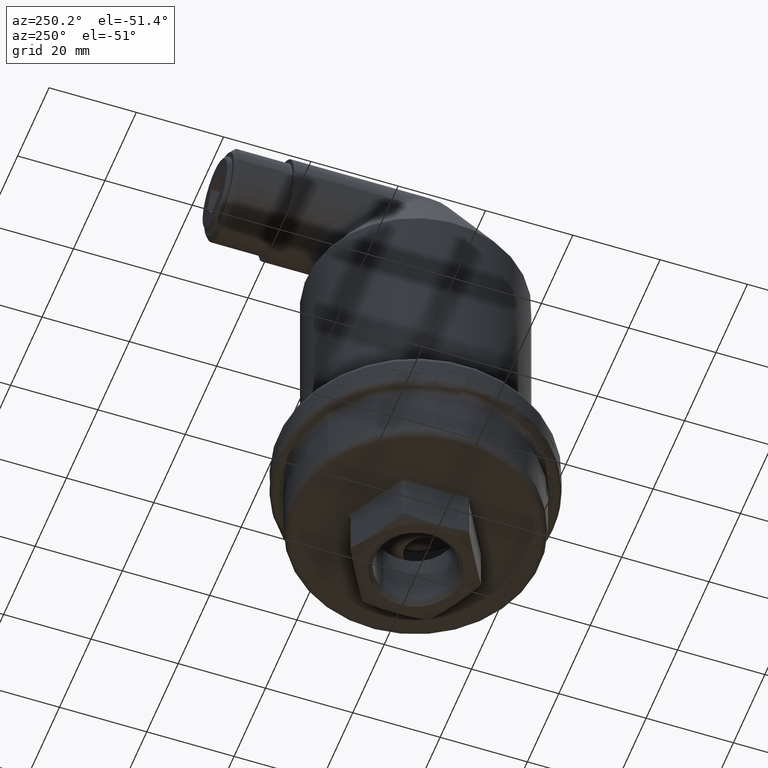
[diagram: clean part render]
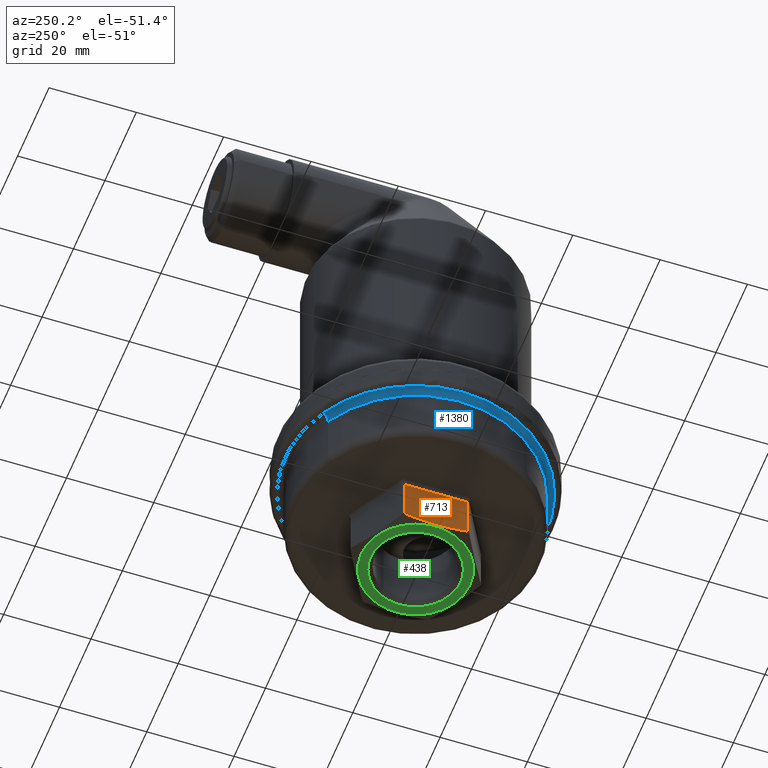
[diagram: same view with three faces highlighted in distinct colors, each labeled with its STEP entity id]
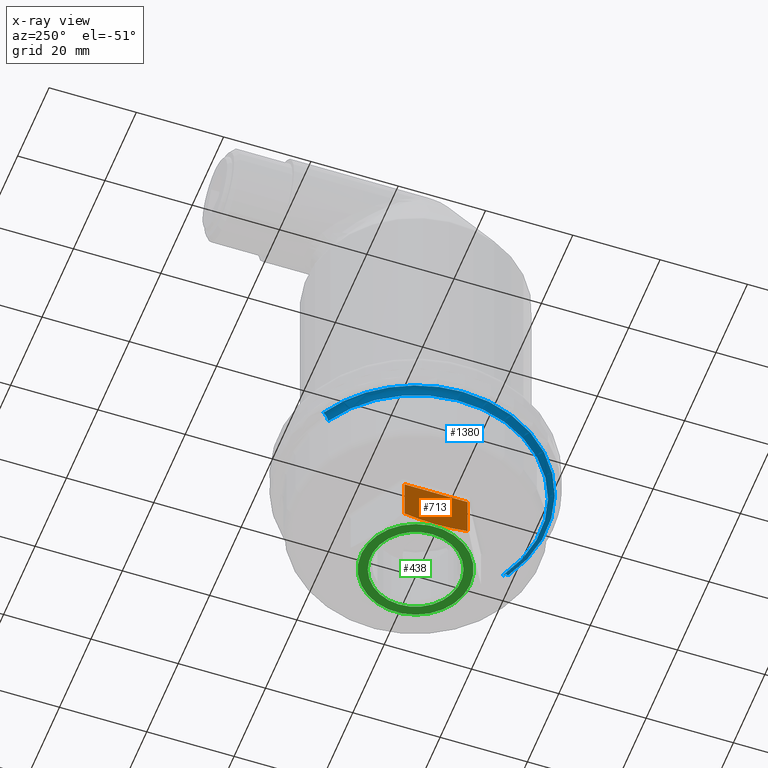
[diagram: x-ray of the same camera — body ghosted, the three highlighted faces saturated]
A machine part, auxiliary view with three faces highlighted in distinct colors.
The next image is the same camera in x-ray (body ghosted, the three faces saturated) — at least one of them is partly hidden behind the body in this view.
Their STEP definitions:

[orange] entity #713 — the highlighted planar face has unit normal (-1, 0, 0).
#693=AXIS2_PLACEMENT_3D('Plane Axis2P3D',#690,#691,#692) ;
#462=CARTESIAN_POINT('Vertex',(-13.,-7.21687836487,0.943105687661)) ;
#466=CARTESIAN_POINT('Control Point',(-12.9999999837,7.21687826143,0.943105689215)) ;
#467=CARTESIAN_POINT('Control Point',(-12.9999994968,4.26568433664,0.370139166259)) ;
#468=CARTESIAN_POINT('Control Point',(-12.9999998519,1.36240414415,0.0332094317862)) ;
#469=CARTESIAN_POINT('Control Point',(-13.0000010053,-1.36231972856,0.0332149949592)) ;
#470=CARTESIAN_POINT('Control Point',(-12.9999994654,-4.26568573712,0.370139427519)) ;
#471=CARTESIAN_POINT('Control Point',(-12.9999999826,-7.21687825527,0.943105687661)) ;
#472=CARTESIAN_POINT('Vertex',(-13.,7.21687836487,0.943105689215)) ;
#671=CARTESIAN_POINT('Line Origine',(-13.,7.21687836487,6.06418925366)) ;
#675=CARTESIAN_POINT('Vertex',(-13.,7.21687836487,11.)) ;
#690=CARTESIAN_POINT('Axis2P3D Location',(-13.,7.50555349947,0.)) ;
#695=CARTESIAN_POINT('Line Origine',(-13.,-7.21687836487,5.97155284383)) ;
#699=CARTESIAN_POINT('Vertex',(-13.,-7.21687836487,11.)) ;
#702=CARTESIAN_POINT('Line Origine',(-13.,1.7763568394E-015,11.)) ;
#672=DIRECTION('Vector Direction',(0.,0.,1.)) ;
#691=DIRECTION('Axis2P3D Direction',(-1.,1.18336165316E-016,0.)) ;
#692=DIRECTION('Axis2P3D XDirection',(-1.18336165316E-016,-1.,0.)) ;
#696=DIRECTION('Vector Direction',(0.,0.,1.)) ;
#703=DIRECTION('Vector Direction',(1.23069611929E-016,1.,0.)) ;
#673=VECTOR('Line Direction',#672,1.) ;
#697=VECTOR('Line Direction',#696,1.) ;
#704=VECTOR('Line Direction',#703,1.) ;
#708=ORIENTED_EDGE('',*,*,#677,.F.) ;
#709=ORIENTED_EDGE('',*,*,#474,.T.) ;
#710=ORIENTED_EDGE('',*,*,#701,.T.) ;
#711=ORIENTED_EDGE('',*,*,#706,.T.) ;
#713=ADVANCED_FACE('Hauptk\X2\00F6\X0\rper',(#712),#694,.T.) ;
#465=B_SPLINE_CURVE_WITH_KNOTS('',5,(#466,#467,#468,#469,#470,#471),.UNSPECIFIED.,.F.,.U.,(6,6),(0.404453444805,21.093244798),.UNSPECIFIED.) ;
#474=EDGE_CURVE('',#473,#463,#465,.T.) ;
#677=EDGE_CURVE('',#473,#676,#674,.T.) ;
#701=EDGE_CURVE('',#463,#700,#698,.T.) ;
#706=EDGE_CURVE('',#700,#676,#705,.T.) ;
#707=EDGE_LOOP('',(#708,#709,#710,#711)) ;
#712=FACE_OUTER_BOUND('',#707,.T.) ;
#674=LINE('Line',#671,#673) ;
#698=LINE('Line',#695,#697) ;
#705=LINE('Line',#702,#704) ;
#694=PLANE('Plane',#693) ;
#463=VERTEX_POINT('',#462) ;
#473=VERTEX_POINT('',#472) ;
#676=VERTEX_POINT('',#675) ;
#700=VERTEX_POINT('',#699) ;

[blue] entity #1380 — the highlighted toroidal blend (fillet) surface has major radius 30 mm and minor (blend) radius 1.5 mm.
#1295=AXIS2_PLACEMENT_3D('Circle Axis2P3D',#1293,#1294,$) ;
#1340=AXIS2_PLACEMENT_3D('Circle Axis2P3D',#1338,#1339,$) ;
#1345=AXIS2_PLACEMENT_3D('Circle Axis2P3D',#1343,#1344,$) ;
#1359=AXIS2_PLACEMENT_3D('Torus Axis2P3D',#1356,#1357,#1358) ;
#1363=AXIS2_PLACEMENT_3D('Circle Axis2P3D',#1361,#1362,$) ;
#1370=AXIS2_PLACEMENT_3D('Circle Axis2P3D',#1368,#1369,$) ;
#1283=CARTESIAN_POINT('Vertex',(-13.6636278502,25.0111030139,24.5)) ;
#1290=CARTESIAN_POINT('Vertex',(13.6636278502,-25.0111030139,24.5)) ;
#1293=CARTESIAN_POINT('Axis2P3D Location',(0.,0.,24.5)) ;
#1328=CARTESIAN_POINT('Vertex',(-14.3827661581,26.3274768567,26.)) ;
#1335=CARTESIAN_POINT('Vertex',(14.3827661581,-26.3274768567,26.)) ;
#1338=CARTESIAN_POINT('Axis2P3D Location',(14.3827661581,-26.3274768567,24.5)) ;
#1343=CARTESIAN_POINT('Axis2P3D Location',(-14.3827661581,26.3274768567,24.5)) ;
#1356=CARTESIAN_POINT('Axis2P3D Location',(-1.06581410364E-014,-1.7763568394E-015,24.5)) ;
#1361=CARTESIAN_POINT('Axis2P3D Location',(-1.06581410364E-014,-1.7763568394E-015,26.)) ;
#1365=CARTESIAN_POINT('Vertex',(-30.,1.74276948428E-007,26.)) ;
#1368=CARTESIAN_POINT('Axis2P3D Location',(-1.06581410364E-014,-1.7763568394E-015,26.)) ;
#1294=DIRECTION('Axis2P3D Direction',(0.,0.,1.)) ;
#1339=DIRECTION('Axis2P3D Direction',(-0.87758256189,-0.479425538604,0.)) ;
#1344=DIRECTION('Axis2P3D Direction',(0.87758256189,0.479425538604,-0.)) ;
#1357=DIRECTION('Axis2P3D Direction',(0.,-0.,1.)) ;
#1358=DIRECTION('Axis2P3D XDirection',(-0.479425538604,0.87758256189,0.)) ;
#1362=DIRECTION('Axis2P3D Direction',(0.,-0.,1.)) ;
#1369=DIRECTION('Axis2P3D Direction',(0.,-0.,1.)) ;
#1374=ORIENTED_EDGE('',*,*,#1367,.F.) ;
#1375=ORIENTED_EDGE('',*,*,#1372,.F.) ;
#1376=ORIENTED_EDGE('',*,*,#1347,.T.) ;
#1377=ORIENTED_EDGE('',*,*,#1297,.F.) ;
#1378=ORIENTED_EDGE('',*,*,#1342,.F.) ;
#1380=ADVANCED_FACE('Hauptk\X2\00F6\X0\rper',(#1379),#1360,.F.) ;
#1296=CIRCLE('generated circle',#1295,28.5) ;
#1341=CIRCLE('generated circle',#1340,1.5) ;
#1346=CIRCLE('generated circle',#1345,1.5) ;
#1364=CIRCLE('generated circle',#1363,30.) ;
#1371=CIRCLE('generated circle',#1370,30.) ;
#1360=TOROIDAL_SURFACE('homeo Torus',#1359,30.,1.5) ;
#1297=EDGE_CURVE('',#1291,#1284,#1296,.F.) ;
#1342=EDGE_CURVE('',#1336,#1291,#1341,.T.) ;
#1347=EDGE_CURVE('',#1329,#1284,#1346,.T.) ;
#1367=EDGE_CURVE('',#1366,#1336,#1364,.T.) ;
#1372=EDGE_CURVE('',#1329,#1366,#1371,.T.) ;
#1373=EDGE_LOOP('',(#1374,#1375,#1376,#1377,#1378)) ;
#1379=FACE_OUTER_BOUND('',#1373,.T.) ;
#1284=VERTEX_POINT('',#1283) ;
#1291=VERTEX_POINT('',#1290) ;
#1329=VERTEX_POINT('',#1328) ;
#1336=VERTEX_POINT('',#1335) ;
#1366=VERTEX_POINT('',#1365) ;

[green] entity #438 — the highlighted planar face has unit normal (0, 0, 1).
#46=AXIS2_PLACEMENT_3D('Circle Axis2P3D',#44,#45,$) ;
#89=AXIS2_PLACEMENT_3D('Circle Axis2P3D',#87,#88,$) ;
#414=AXIS2_PLACEMENT_3D('Plane Axis2P3D',#411,#412,#413) ;
#418=AXIS2_PLACEMENT_3D('Circle Axis2P3D',#416,#417,$) ;
#427=AXIS2_PLACEMENT_3D('Circle Axis2P3D',#425,#426,$) ;
#44=CARTESIAN_POINT('Axis2P3D Location',(0.,2.97456456439E-015,0.)) ;
#48=CARTESIAN_POINT('Vertex',(-9.05270291718,-4.94551414347,-6.66133814775E-016)) ;
#50=CARTESIAN_POINT('Vertex',(9.05270291718,4.94551414347,0.)) ;
#87=CARTESIAN_POINT('Axis2P3D Location',(0.,2.97456456439E-015,0.)) ;
#411=CARTESIAN_POINT('Axis2P3D Location',(0.,0.,0.)) ;
#416=CARTESIAN_POINT('Axis2P3D Location',(0.,0.,0.)) ;
#420=CARTESIAN_POINT('Vertex',(-5.9981442115,10.9795293322,1.7763568394E-015)) ;
#422=CARTESIAN_POINT('Vertex',(5.9981442115,-10.9795293322,1.7763568394E-015)) ;
#425=CARTESIAN_POINT('Axis2P3D Location',(0.,0.,0.)) ;
#45=DIRECTION('Axis2P3D Direction',(0.,0.,-1.)) ;
#88=DIRECTION('Axis2P3D Direction',(0.,0.,-1.)) ;
#412=DIRECTION('Axis2P3D Direction',(0.,0.,1.)) ;
#413=DIRECTION('Axis2P3D XDirection',(1.,0.,0.)) ;
#417=DIRECTION('Axis2P3D Direction',(0.,0.,1.)) ;
#426=DIRECTION('Axis2P3D Direction',(0.,0.,1.)) ;
#431=ORIENTED_EDGE('',*,*,#424,.F.) ;
#432=ORIENTED_EDGE('',*,*,#429,.F.) ;
#435=ORIENTED_EDGE('',*,*,#52,.T.) ;
#436=ORIENTED_EDGE('',*,*,#91,.T.) ;
#437=FACE_BOUND('',#434,.T.) ;
#438=ADVANCED_FACE('Hauptk\X2\00F6\X0\rper',(#433,#437),#415,.F.) ;
#47=CIRCLE('generated circle',#46,10.3155) ;
#90=CIRCLE('generated circle',#89,10.3155) ;
#419=CIRCLE('generated circle',#418,12.5111069989) ;
#428=CIRCLE('generated circle',#427,12.5111069989) ;
#52=EDGE_CURVE('',#49,#51,#47,.F.) ;
#91=EDGE_CURVE('',#51,#49,#90,.F.) ;
#424=EDGE_CURVE('',#421,#423,#419,.T.) ;
#429=EDGE_CURVE('',#423,#421,#428,.T.) ;
#430=EDGE_LOOP('',(#431,#432)) ;
#434=EDGE_LOOP('',(#435,#436)) ;
#433=FACE_OUTER_BOUND('',#430,.T.) ;
#415=PLANE('Plane',#414) ;
#49=VERTEX_POINT('',#48) ;
#51=VERTEX_POINT('',#50) ;
#421=VERTEX_POINT('',#420) ;
#423=VERTEX_POINT('',#422) ;